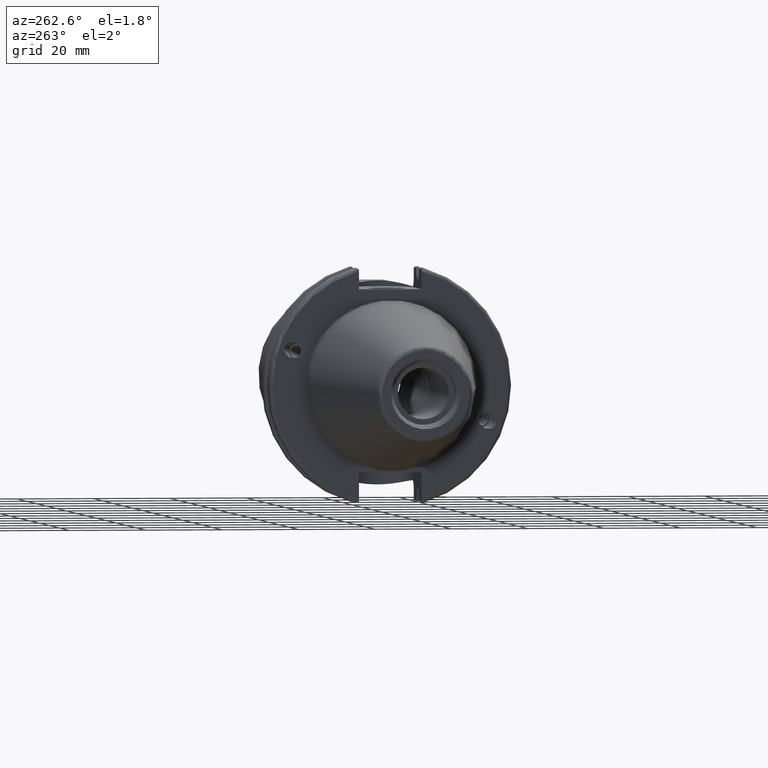
[diagram: clean part render]
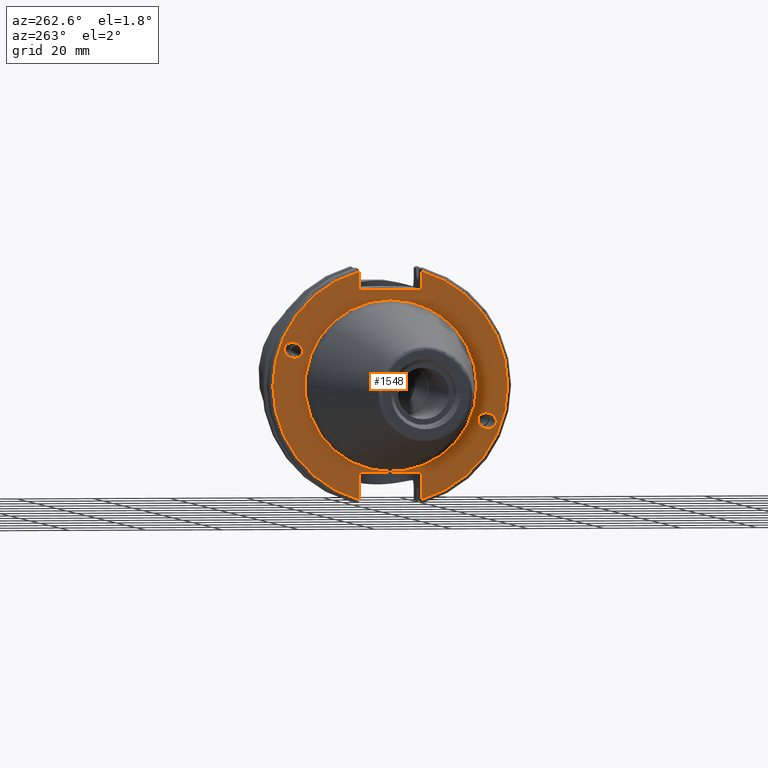
[diagram: same view with one face highlighted and labeled with its STEP entity id]
A machine part, auxiliary view. The second image highlights one B-rep face of the part: STEP entity #1548.
In plain terms, the highlighted planar face has unit normal (-1, 0, 0).
Its self-contained STEP definition (entity closure, byte-faithful):
#39=ELLIPSE('',#1674,2.44154917752292,2.00000000000001);
#48=ELLIPSE('',#1717,2.44154917752292,2.00000000000001);
#58=FACE_BOUND('',#263,.T.);
#59=FACE_BOUND('',#264,.T.);
#60=FACE_BOUND('',#265,.T.);
#77=PLANE('',#1727);
#166=FACE_OUTER_BOUND('',#262,.T.);
#262=EDGE_LOOP('',(#1238,#1239,#1240,#1241,#1242,#1243,#1244,#1245));
#263=EDGE_LOOP('',(#1246));
#264=EDGE_LOOP('',(#1247));
#265=EDGE_LOOP('',(#1248));
#358=CIRCLE('',#1725,22.3);
#360=CIRCLE('',#1728,30.75);
#361=CIRCLE('',#1729,30.75);
#432=LINE('',#2832,#518);
#433=LINE('',#2836,#519);
#434=LINE('',#2838,#520);
#435=LINE('',#2840,#521);
#436=LINE('',#2844,#522);
#437=LINE('',#2845,#523);
#518=VECTOR('',#2074,10.);
#519=VECTOR('',#2077,10.);
#520=VECTOR('',#2078,10.);
#521=VECTOR('',#2079,10.);
#522=VECTOR('',#2082,10.);
#523=VECTOR('',#2083,10.);
#662=VERTEX_POINT('',#2627);
#702=VERTEX_POINT('',#2810);
#707=VERTEX_POINT('',#2825);
#708=VERTEX_POINT('',#2830);
#709=VERTEX_POINT('',#2831);
#710=VERTEX_POINT('',#2833);
#711=VERTEX_POINT('',#2835);
#712=VERTEX_POINT('',#2837);
#713=VERTEX_POINT('',#2839);
#714=VERTEX_POINT('',#2841);
#715=VERTEX_POINT('',#2843);
#842=EDGE_CURVE('',#662,#662,#39,.T.);
#898=EDGE_CURVE('',#702,#702,#48,.T.);
#905=EDGE_CURVE('',#707,#707,#358,.T.);
#907=EDGE_CURVE('',#708,#709,#432,.T.);
#908=EDGE_CURVE('',#710,#709,#360,.T.);
#909=EDGE_CURVE('',#710,#711,#433,.T.);
#910=EDGE_CURVE('',#711,#712,#434,.T.);
#911=EDGE_CURVE('',#712,#713,#435,.T.);
#912=EDGE_CURVE('',#714,#713,#361,.T.);
#913=EDGE_CURVE('',#714,#715,#436,.T.);
#914=EDGE_CURVE('',#715,#708,#437,.T.);
#1238=ORIENTED_EDGE('',*,*,#907,.T.);
#1239=ORIENTED_EDGE('',*,*,#908,.F.);
#1240=ORIENTED_EDGE('',*,*,#909,.T.);
#1241=ORIENTED_EDGE('',*,*,#910,.T.);
#1242=ORIENTED_EDGE('',*,*,#911,.T.);
#1243=ORIENTED_EDGE('',*,*,#912,.F.);
#1244=ORIENTED_EDGE('',*,*,#913,.T.);
#1245=ORIENTED_EDGE('',*,*,#914,.T.);
#1246=ORIENTED_EDGE('',*,*,#842,.T.);
#1247=ORIENTED_EDGE('',*,*,#898,.T.);
#1248=ORIENTED_EDGE('',*,*,#905,.F.);
#1548=ADVANCED_FACE('',(#166,#58,#59,#60),#77,.T.);
#1674=AXIS2_PLACEMENT_3D('',#2629,#1947,#1948);
#1717=AXIS2_PLACEMENT_3D('',#2812,#2050,#2051);
#1725=AXIS2_PLACEMENT_3D('',#2827,#2068,#2069);
#1727=AXIS2_PLACEMENT_3D('',#2829,#2072,#2073);
#1728=AXIS2_PLACEMENT_3D('',#2834,#2075,#2076);
#1729=AXIS2_PLACEMENT_3D('',#2842,#2080,#2081);
#1947=DIRECTION('center_axis',(1.,0.,0.));
#1948=DIRECTION('ref_axis',(5.68400912649E-17,-0.939692620785909,-0.342020143325667));
#2050=DIRECTION('center_axis',(1.,0.,0.));
#2051=DIRECTION('ref_axis',(5.68400912649E-17,0.939692620785909,0.342020143325667));
#2068=DIRECTION('center_axis',(-1.,0.,0.));
#2069=DIRECTION('ref_axis',(0.,-1.,1.83697019872103E-16));
#2072=DIRECTION('center_axis',(-1.,0.,0.));
#2073=DIRECTION('ref_axis',(0.,0.,1.));
#2074=DIRECTION('',(0.,0.,1.));
#2075=DIRECTION('center_axis',(1.,0.,0.));
#2076=DIRECTION('ref_axis',(0.,1.,1.60812264967664E-16));
#2077=DIRECTION('',(0.,0.,1.));
#2078=DIRECTION('',(0.,-1.,0.));
#2079=DIRECTION('',(0.,0.,-1.));
#2080=DIRECTION('center_axis',(1.,0.,0.));
#2081=DIRECTION('ref_axis',(0.,-1.,1.60812264967664E-16));
#2082=DIRECTION('',(0.,0.,-1.));
#2083=DIRECTION('',(0.,1.,0.));
#2627=CARTESIAN_POINT('',(3.175,-23.0773950158153,-8.39948487016));
#2629=CARTESIAN_POINT('Origin',(3.175,-25.3717007612195,-9.23454386979305));
#2810=CARTESIAN_POINT('',(3.175,23.0773950158153,8.39948487016));
#2812=CARTESIAN_POINT('Origin',(3.175,25.3717007612195,9.23454386979306));
#2825=CARTESIAN_POINT('',(3.175,-2.7309623620986E-15,22.3));
#2827=CARTESIAN_POINT('Origin',(3.175,0.,0.));
#2829=CARTESIAN_POINT('Origin',(3.175,31.75,0.));
#2830=CARTESIAN_POINT('',(3.175,8.18999999999999,25.));
#2831=CARTESIAN_POINT('',(3.175,8.19,29.6392712461019));
#2832=CARTESIAN_POINT('',(3.175,8.19,12.5));
#2833=CARTESIAN_POINT('',(3.175,8.18999999999999,-29.6392712461019));
#2834=CARTESIAN_POINT('Origin',(3.175,0.,0.));
#2835=CARTESIAN_POINT('',(3.175,8.19000000000001,-22.6));
#2836=CARTESIAN_POINT('',(3.175,8.19000000000001,-11.3));
#2837=CARTESIAN_POINT('',(3.175,-8.19,-22.6));
#2838=CARTESIAN_POINT('',(3.175,15.875,-22.6));
#2839=CARTESIAN_POINT('',(3.175,-8.19,-29.6392712461019));
#2840=CARTESIAN_POINT('',(3.175,-8.19,-11.3));
#2841=CARTESIAN_POINT('',(3.175,-8.18999999999999,29.6392712461019));
#2842=CARTESIAN_POINT('Origin',(3.175,0.,0.));
#2843=CARTESIAN_POINT('',(3.175,-8.19000000000001,25.));
#2844=CARTESIAN_POINT('',(3.175,-8.19000000000001,12.5));
#2845=CARTESIAN_POINT('',(3.175,15.875,25.));